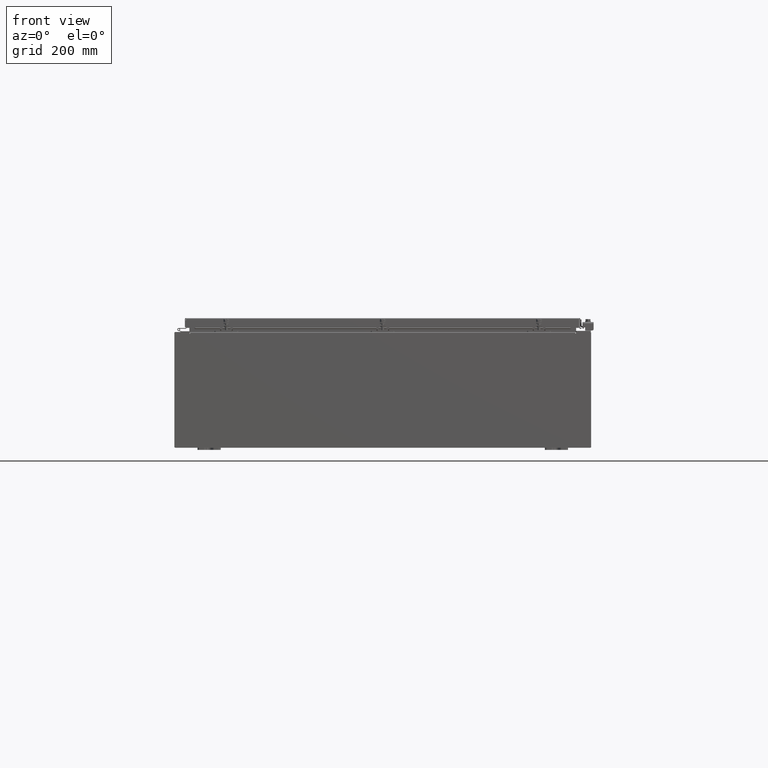
[diagram: clean part render]
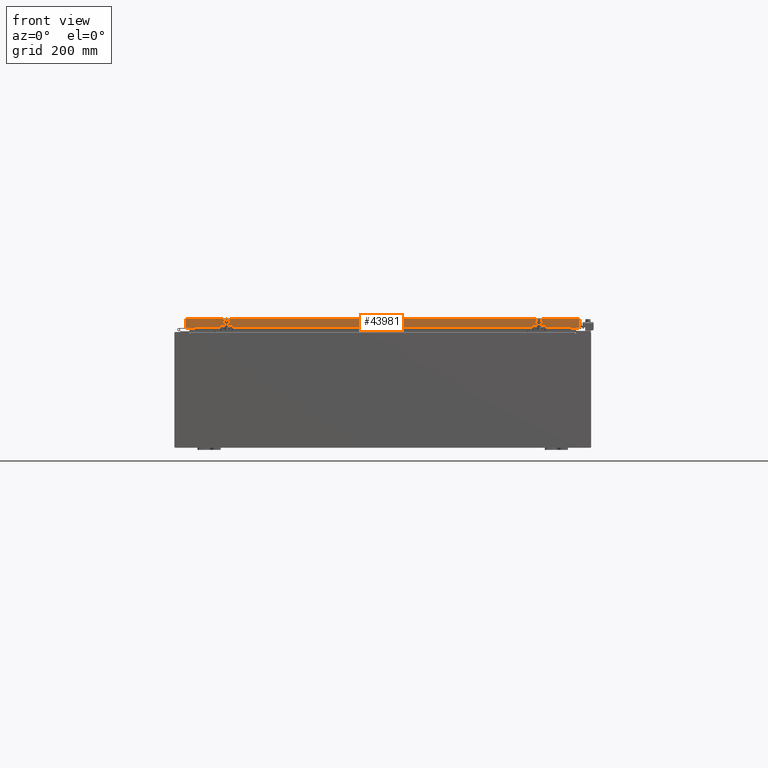
[diagram: same view with one face highlighted and labeled with its STEP entity id]
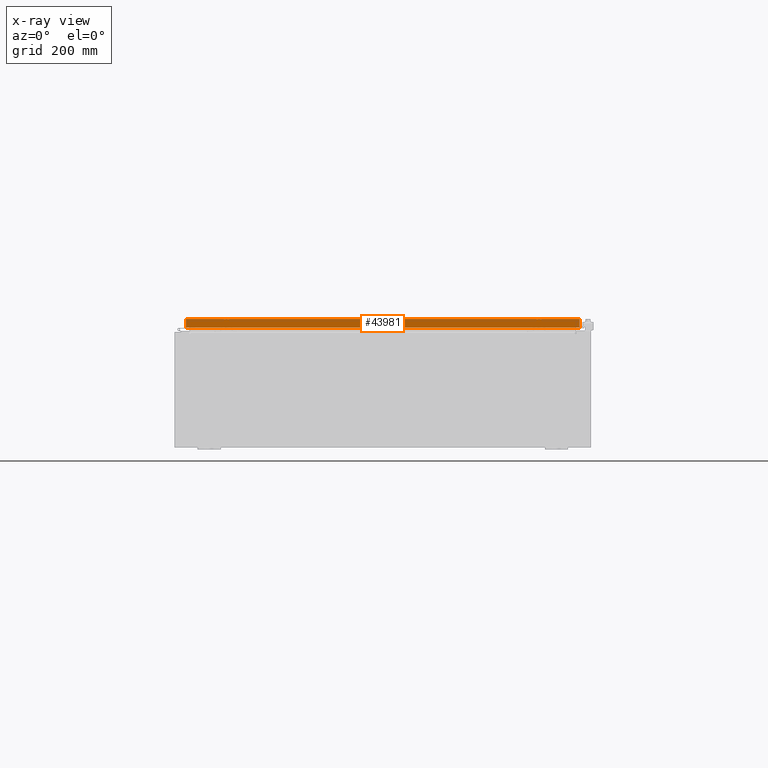
[diagram: x-ray of the same camera — body ghosted, the highlighted face saturated]
A machine part, front view. The second image highlights one B-rep face of the part: STEP entity #43981.
The next image is the same camera in x-ray: the body ghosted, the highlighted face saturated — about 0% of this face is hidden behind the body in this view.
In plain terms, the highlighted planar face has unit normal (-0, 1, -0).
Its self-contained STEP definition (entity closure, byte-faithful):
#195 = EDGE_CURVE ( 'NONE', #25442, #51077, #7902, .T. ) ;
#596 = ORIENTED_EDGE ( 'NONE', *, *, #195, .T. ) ;
#1950 = EDGE_LOOP ( 'NONE', ( #9702, #596, #46335, #34258, #30300, #39137 ) ) ;
#3951 = DIRECTION ( 'NONE',  ( -6.989207801985715000E-031, 1.000000000000000000, -5.637761885544720300E-015 ) ) ;
#5237 = AXIS2_PLACEMENT_3D ( 'NONE', #41334, #3951, #33112 ) ;
#6132 = EDGE_CURVE ( 'NONE', #23011, #51077, #31690, .T. ) ;
#7902 = LINE ( 'NONE', #44771, #49662 ) ;
#8336 = CARTESIAN_POINT ( 'NONE',  ( 17.07799999999999900, -23.09400000000000100, -0.08769999999999547600 ) ) ;
#9702 = ORIENTED_EDGE ( 'NONE', *, *, #17017, .F. ) ;
#10231 = DIRECTION ( 'NONE',  ( -1.000000000000000000, 0.0000000000000000000, 0.0000000000000000000 ) ) ;
#10864 = LINE ( 'NONE', #28793, #53911 ) ;
#10950 = EDGE_CURVE ( 'NONE', #39506, #33776, #10864, .T. ) ;
#14566 = VECTOR ( 'NONE', #38115, 39.37007874015748100 ) ;
#14727 = CARTESIAN_POINT ( 'NONE',  ( -16.23915786437626700, -23.09400000000000500, -0.8500000000000048600 ) ) ;
#17017 = EDGE_CURVE ( 'NONE', #25442, #35752, #44384, .T. ) ;
#20503 = PLANE ( 'NONE',  #5237 ) ;
#20572 = VECTOR ( 'NONE', #24091, 39.37007874015748100 ) ;
#21013 = CARTESIAN_POINT ( 'NONE',  ( -16.98915786437626700, -23.09400000000000500, -0.8499999999999954300 ) ) ;
#22343 = CARTESIAN_POINT ( 'NONE',  ( 16.98915786437626700, -23.09400000000000100, -0.08769999999999549000 ) ) ;
#23011 = VERTEX_POINT ( 'NONE', #14727 ) ;
#24091 = DIRECTION ( 'NONE',  ( -1.000000000000000000, -8.758115402030108600E-047, 1.239713195391617400E-016 ) ) ;
#25442 = VERTEX_POINT ( 'NONE', #36399 ) ;
#27235 = FACE_OUTER_BOUND ( 'NONE', #1950, .T. ) ;
#28290 = LINE ( 'NONE', #42312, #14566 ) ;
#28793 = CARTESIAN_POINT ( 'NONE',  ( 17.07799999999999900, -23.09400000000000500, -0.8499999999999996400 ) ) ;
#30285 = EDGE_CURVE ( 'NONE', #33776, #23011, #52630, .T. ) ;
#30300 = ORIENTED_EDGE ( 'NONE', *, *, #10950, .F. ) ;
#31690 = LINE ( 'NONE', #35864, #20572 ) ;
#33112 = DIRECTION ( 'NONE',  ( 0.0000000000000000000, 5.637761885544720300E-015, 1.000000000000000000 ) ) ;
#33776 = VERTEX_POINT ( 'NONE', #45195 ) ;
#34258 = ORIENTED_EDGE ( 'NONE', *, *, #30285, .F. ) ;
#35752 = VERTEX_POINT ( 'NONE', #22343 ) ;
#35864 = CARTESIAN_POINT ( 'NONE',  ( 17.07799999999999900, -23.09400000000000500, -0.8499999999999996400 ) ) ;
#36399 = CARTESIAN_POINT ( 'NONE',  ( -16.98915786437626700, -23.09400000000000100, -0.08769999999999547600 ) ) ;
#37195 = DIRECTION ( 'NONE',  ( -1.000000000000000000, -8.758115402030108600E-047, 1.239713195391617400E-016 ) ) ;
#37551 = DIRECTION ( 'NONE',  ( 1.000000000000000000, 6.989207801985715800E-031, -3.922586267643549700E-045 ) ) ;
#38115 = DIRECTION ( 'NONE',  ( -0.0000000000000000000, -5.637761885544720300E-015, -1.000000000000000000 ) ) ;
#39137 = ORIENTED_EDGE ( 'NONE', *, *, #43512, .F. ) ;
#39506 = VERTEX_POINT ( 'NONE', #41239 ) ;
#41239 = CARTESIAN_POINT ( 'NONE',  ( 16.98915786437626700, -23.09400000000000500, -0.8499999999999996400 ) ) ;
#41334 = CARTESIAN_POINT ( 'NONE',  ( 1.614087649790581200E-029, -23.09400000000000100, 1.304592866407813600E-013 ) ) ;
#41601 = VECTOR ( 'NONE', #10231, 39.37007874015748100 ) ;
#42312 = CARTESIAN_POINT ( 'NONE',  ( 16.98915786437626700, -23.09400000000000100, -0.07469999999999958600 ) ) ;
#43084 = VECTOR ( 'NONE', #37551, 39.37007874015748100 ) ;
#43512 = EDGE_CURVE ( 'NONE', #35752, #39506, #28290, .T. ) ;
#43981 = ADVANCED_FACE ( 'NONE', ( #27235 ), #20503, .F. ) ;
#44384 = LINE ( 'NONE', #8336, #43084 ) ;
#44771 = CARTESIAN_POINT ( 'NONE',  ( -16.98915786437627100, -23.09400000000000100, 1.304592866407813600E-013 ) ) ;
#45195 = CARTESIAN_POINT ( 'NONE',  ( 16.23915786437626400, -23.09400000000000500, -0.8500000000000048600 ) ) ;
#46335 = ORIENTED_EDGE ( 'NONE', *, *, #6132, .F. ) ;
#47633 = CARTESIAN_POINT ( 'NONE',  ( 16.23915786437626700, -23.09400000000000500, -0.8500000000000048600 ) ) ;
#49662 = VECTOR ( 'NONE', #52940, 39.37007874015748100 ) ;
#51077 = VERTEX_POINT ( 'NONE', #21013 ) ;
#52630 = LINE ( 'NONE', #47633, #41601 ) ;
#52940 = DIRECTION ( 'NONE',  ( 0.0000000000000000000, -5.637761885544720300E-015, -1.000000000000000000 ) ) ;
#53911 = VECTOR ( 'NONE', #37195, 39.37007874015748100 ) ;